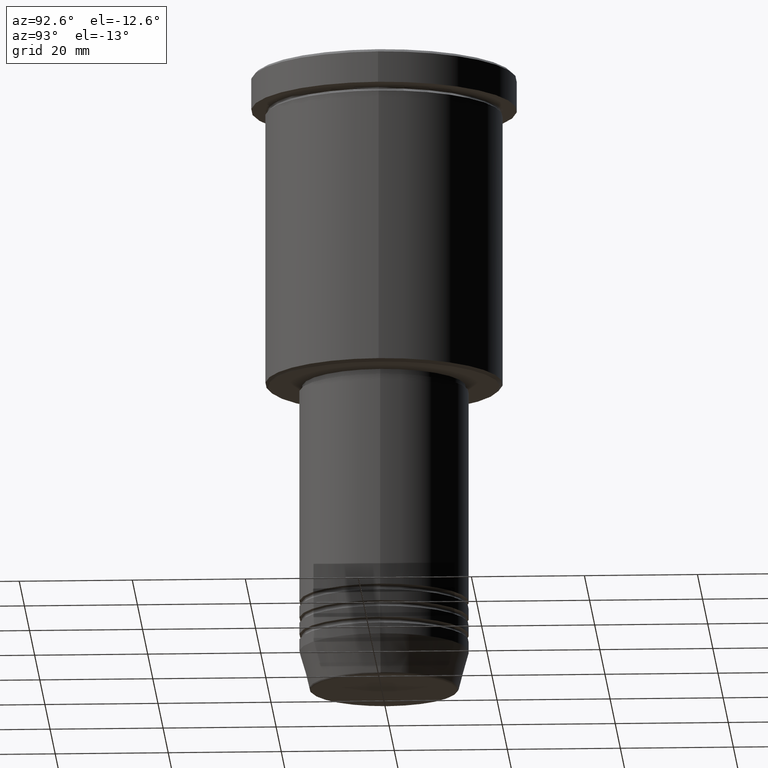
[diagram: clean part render]
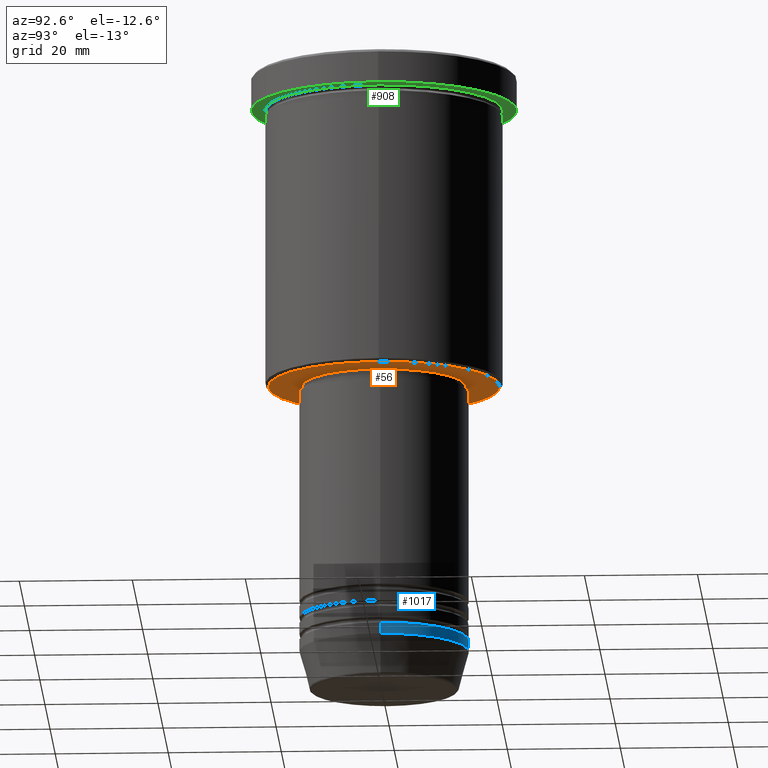
[diagram: same view with three faces highlighted in distinct colors, each labeled with its STEP entity id]
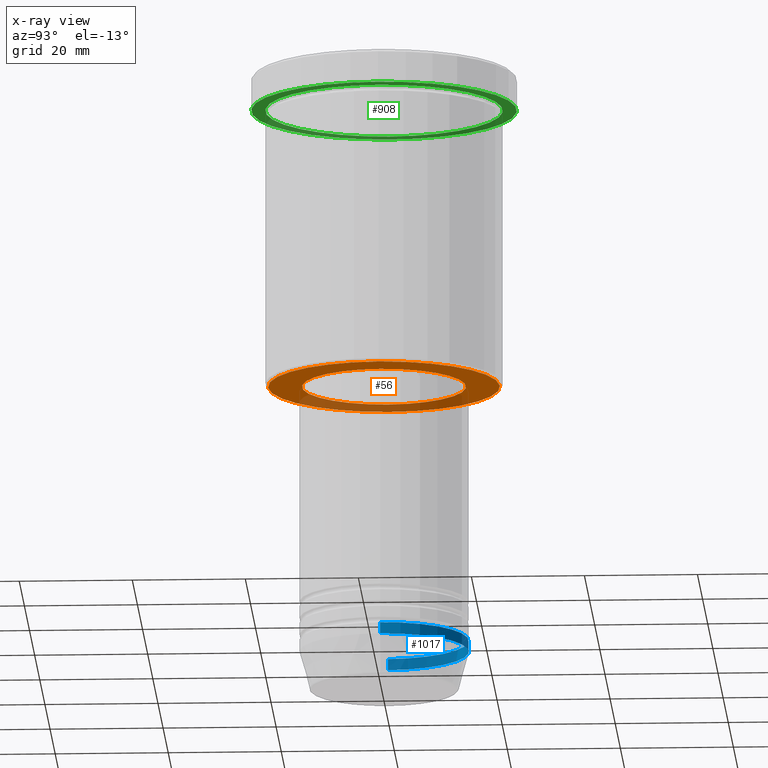
[diagram: x-ray of the same camera — body ghosted, the three highlighted faces saturated]
A machine part, auxiliary view with three faces highlighted in distinct colors.
The next image is the same camera in x-ray (body ghosted, the three faces saturated) — at least one of them is partly hidden behind the body in this view.
Their STEP definitions:

[orange] entity #56 — the highlighted planar face has unit normal (0, 0, -1).
#13 = PLANE ( 'NONE',  #667 ) ;
#30 = ORIENTED_EDGE ( 'NONE', *, *, #347, .T. ) ;
#56 = ADVANCED_FACE ( 'NONE', ( #648, #566 ), #13, .T. ) ;
#67 = EDGE_LOOP ( 'NONE', ( #420, #310 ) ) ;
#69 = AXIS2_PLACEMENT_3D ( 'NONE', #801, #1168, #897 ) ;
#80 = EDGE_CURVE ( 'NONE', #602, #323, #220, .T. ) ;
#100 = DIRECTION ( 'NONE',  ( 0.000000000000000000, 0.000000000000000000, -1.000000000000000000 ) ) ;
#134 = EDGE_CURVE ( 'NONE', #323, #602, #680, .T. ) ;
#164 = EDGE_CURVE ( 'NONE', #619, #401, #890, .T. ) ;
#220 = CIRCLE ( 'NONE', #240, 20.50000000000003197 ) ;
#240 = AXIS2_PLACEMENT_3D ( 'NONE', #432, #788, #1079 ) ;
#270 = CARTESIAN_POINT ( 'NONE',  ( -14.49999999999999822, 1.775737858763662015E-15, -55.99999999999999289 ) ) ;
#282 = CARTESIAN_POINT ( 'NONE',  ( 20.50000000000003197, 0.000000000000000000, -55.99999999999999289 ) ) ;
#310 = ORIENTED_EDGE ( 'NONE', *, *, #80, .T. ) ;
#323 = VERTEX_POINT ( 'NONE', #282 ) ;
#334 = AXIS2_PLACEMENT_3D ( 'NONE', #697, #443, #993 ) ;
#347 = EDGE_CURVE ( 'NONE', #401, #619, #818, .T. ) ;
#360 = ORIENTED_EDGE ( 'NONE', *, *, #164, .T. ) ;
#401 = VERTEX_POINT ( 'NONE', #663 ) ;
#419 = CARTESIAN_POINT ( 'NONE',  ( -20.50000000000003197, 2.541142108230759846E-15, -55.99999999999999289 ) ) ;
#420 = ORIENTED_EDGE ( 'NONE', *, *, #134, .T. ) ;
#432 = CARTESIAN_POINT ( 'NONE',  ( 0.000000000000000000, 0.000000000000000000, -55.99999999999999289 ) ) ;
#443 = DIRECTION ( 'NONE',  ( -0.000000000000000000, -0.000000000000000000, 1.000000000000000000 ) ) ;
#532 = DIRECTION ( 'NONE',  ( 0.000000000000000000, 0.000000000000000000, -1.000000000000000000 ) ) ;
#535 = AXIS2_PLACEMENT_3D ( 'NONE', #1151, #532, #887 ) ;
#566 = FACE_BOUND ( 'NONE', #741, .T. ) ;
#602 = VERTEX_POINT ( 'NONE', #419 ) ;
#619 = VERTEX_POINT ( 'NONE', #270 ) ;
#648 = FACE_OUTER_BOUND ( 'NONE', #67, .T. ) ;
#663 = CARTESIAN_POINT ( 'NONE',  ( 14.49999999999999822, 0.000000000000000000, -55.99999999999999289 ) ) ;
#667 = AXIS2_PLACEMENT_3D ( 'NONE', #739, #100, #1105 ) ;
#680 = CIRCLE ( 'NONE', #535, 20.50000000000003197 ) ;
#697 = CARTESIAN_POINT ( 'NONE',  ( 0.000000000000000000, 0.000000000000000000, -55.99999999999999289 ) ) ;
#739 = CARTESIAN_POINT ( 'NONE',  ( 0.000000000000000000, 21.00000000000000000, -55.99999999999999289 ) ) ;
#741 = EDGE_LOOP ( 'NONE', ( #30, #360 ) ) ;
#788 = DIRECTION ( 'NONE',  ( 0.000000000000000000, 0.000000000000000000, -1.000000000000000000 ) ) ;
#801 = CARTESIAN_POINT ( 'NONE',  ( 0.000000000000000000, 0.000000000000000000, -55.99999999999999289 ) ) ;
#818 = CIRCLE ( 'NONE', #334, 14.49999999999999822 ) ;
#887 = DIRECTION ( 'NONE',  ( -1.000000000000000000, 0.000000000000000000, 0.000000000000000000 ) ) ;
#890 = CIRCLE ( 'NONE', #69, 14.49999999999999822 ) ;
#897 = DIRECTION ( 'NONE',  ( 1.000000000000000000, 0.000000000000000000, 0.000000000000000000 ) ) ;
#993 = DIRECTION ( 'NONE',  ( 1.000000000000000000, 0.000000000000000000, 0.000000000000000000 ) ) ;
#1079 = DIRECTION ( 'NONE',  ( -1.000000000000000000, 0.000000000000000000, 0.000000000000000000 ) ) ;
#1105 = DIRECTION ( 'NONE',  ( -1.000000000000000000, 0.000000000000000000, -0.000000000000000000 ) ) ;
#1151 = CARTESIAN_POINT ( 'NONE',  ( 0.000000000000000000, 0.000000000000000000, -55.99999999999999289 ) ) ;
#1168 = DIRECTION ( 'NONE',  ( -0.000000000000000000, -0.000000000000000000, 1.000000000000000000 ) ) ;

[blue] entity #1017 — the highlighted cylindrical surface (partial cylindrical patch) has radius 15 mm, axis along (-0, -0, 1).
#193 = VERTEX_POINT ( 'NONE', #867 ) ;
#218 = CARTESIAN_POINT ( 'NONE',  ( -15.00000000000000000, 1.836970198721029589E-15, -104.0000000000000142 ) ) ;
#298 = DIRECTION ( 'NONE',  ( -0.000000000000000000, -0.000000000000000000, 1.000000000000000000 ) ) ;
#319 = DIRECTION ( 'NONE',  ( -0.000000000000000000, -0.000000000000000000, 1.000000000000000000 ) ) ;
#336 = DIRECTION ( 'NONE',  ( 1.000000000000000000, 0.000000000000000000, 0.000000000000000000 ) ) ;
#345 = CARTESIAN_POINT ( 'NONE',  ( 15.00000000000000000, 0.000000000000000000, 0.000000000000000000 ) ) ;
#356 = CIRCLE ( 'NONE', #1104, 15.00000000000000000 ) ;
#375 = CIRCLE ( 'NONE', #1164, 15.00000000000000000 ) ;
#391 = VERTEX_POINT ( 'NONE', #475 ) ;
#455 = CYLINDRICAL_SURFACE ( 'NONE', #580, 15.00000000000000000 ) ;
#475 = CARTESIAN_POINT ( 'NONE',  ( -15.00000000000000000, 1.836970198721029589E-15, -102.0000000000000142 ) ) ;
#504 = ORIENTED_EDGE ( 'NONE', *, *, #547, .T. ) ;
#531 = ORIENTED_EDGE ( 'NONE', *, *, #996, .F. ) ;
#547 = EDGE_CURVE ( 'NONE', #193, #830, #375, .T. ) ;
#580 = AXIS2_PLACEMENT_3D ( 'NONE', #987, #635, #732 ) ;
#594 = CARTESIAN_POINT ( 'NONE',  ( 0.000000000000000000, 0.000000000000000000, -104.0000000000000142 ) ) ;
#622 = ORIENTED_EDGE ( 'NONE', *, *, #1182, .T. ) ;
#635 = DIRECTION ( 'NONE',  ( -0.000000000000000000, -0.000000000000000000, 1.000000000000000000 ) ) ;
#664 = DIRECTION ( 'NONE',  ( 1.000000000000000000, 0.000000000000000000, 0.000000000000000000 ) ) ;
#710 = FACE_OUTER_BOUND ( 'NONE', #1009, .T. ) ;
#732 = DIRECTION ( 'NONE',  ( 1.000000000000000000, 0.000000000000000000, 0.000000000000000000 ) ) ;
#748 = DIRECTION ( 'NONE',  ( -0.000000000000000000, -0.000000000000000000, 1.000000000000000000 ) ) ;
#825 = LINE ( 'NONE', #345, #1179 ) ;
#830 = VERTEX_POINT ( 'NONE', #218 ) ;
#833 = CARTESIAN_POINT ( 'NONE',  ( -15.00000000000000000, 1.836970198721029589E-15, 0.000000000000000000 ) ) ;
#846 = LINE ( 'NONE', #833, #929 ) ;
#851 = EDGE_CURVE ( 'NONE', #1142, #391, #356, .T. ) ;
#867 = CARTESIAN_POINT ( 'NONE',  ( 15.00000000000000000, 0.000000000000000000, -104.0000000000000142 ) ) ;
#907 = ORIENTED_EDGE ( 'NONE', *, *, #851, .F. ) ;
#929 = VECTOR ( 'NONE', #298, 1000.000000000000000 ) ;
#987 = CARTESIAN_POINT ( 'NONE',  ( 0.000000000000000000, 0.000000000000000000, 0.000000000000000000 ) ) ;
#996 = EDGE_CURVE ( 'NONE', #193, #1142, #825, .T. ) ;
#1009 = EDGE_LOOP ( 'NONE', ( #504, #622, #907, #531 ) ) ;
#1017 = ADVANCED_FACE ( 'NONE', ( #710 ), #455, .T. ) ;
#1104 = AXIS2_PLACEMENT_3D ( 'NONE', #1117, #748, #664 ) ;
#1117 = CARTESIAN_POINT ( 'NONE',  ( 0.000000000000000000, 0.000000000000000000, -102.0000000000000142 ) ) ;
#1127 = CARTESIAN_POINT ( 'NONE',  ( 15.00000000000000000, 0.000000000000000000, -102.0000000000000142 ) ) ;
#1142 = VERTEX_POINT ( 'NONE', #1127 ) ;
#1164 = AXIS2_PLACEMENT_3D ( 'NONE', #594, #319, #336 ) ;
#1174 = DIRECTION ( 'NONE',  ( -0.000000000000000000, -0.000000000000000000, 1.000000000000000000 ) ) ;
#1179 = VECTOR ( 'NONE', #1174, 1000.000000000000000 ) ;
#1182 = EDGE_CURVE ( 'NONE', #830, #391, #846, .T. ) ;

[green] entity #908 — the highlighted planar face has unit normal (0, 0, -1).
#34 = CARTESIAN_POINT ( 'NONE',  ( -21.00000000000000000, 0.000000000000000000, -5.999999999999994671 ) ) ;
#45 = VERTEX_POINT ( 'NONE', #34 ) ;
#78 = DIRECTION ( 'NONE',  ( -1.000000000000000000, 0.000000000000000000, 0.000000000000000000 ) ) ;
#129 = AXIS2_PLACEMENT_3D ( 'NONE', #384, #1116, #208 ) ;
#151 = ORIENTED_EDGE ( 'NONE', *, *, #1148, .F. ) ;
#196 = EDGE_LOOP ( 'NONE', ( #1091, #339 ) ) ;
#208 = DIRECTION ( 'NONE',  ( -1.000000000000000000, 0.000000000000000000, 0.000000000000000000 ) ) ;
#210 = VERTEX_POINT ( 'NONE', #992 ) ;
#233 = DIRECTION ( 'NONE',  ( 0.000000000000000000, 0.000000000000000000, -1.000000000000000000 ) ) ;
#264 = ORIENTED_EDGE ( 'NONE', *, *, #592, .F. ) ;
#274 = DIRECTION ( 'NONE',  ( -0.000000000000000000, -0.000000000000000000, 1.000000000000000000 ) ) ;
#287 = DIRECTION ( 'NONE',  ( 1.000000000000000000, 0.000000000000000000, 0.000000000000000000 ) ) ;
#303 = CARTESIAN_POINT ( 'NONE',  ( 0.000000000000000000, 0.000000000000000000, -5.999999999999994671 ) ) ;
#324 = DIRECTION ( 'NONE',  ( -1.000000000000000000, 0.000000000000000000, -0.000000000000000000 ) ) ;
#329 = VERTEX_POINT ( 'NONE', #379 ) ;
#339 = ORIENTED_EDGE ( 'NONE', *, *, #1070, .T. ) ;
#346 = VERTEX_POINT ( 'NONE', #523 ) ;
#372 = AXIS2_PLACEMENT_3D ( 'NONE', #303, #936, #287 ) ;
#379 = CARTESIAN_POINT ( 'NONE',  ( 23.50000000000000000, 0.000000000000000000, -5.999999999999994671 ) ) ;
#384 = CARTESIAN_POINT ( 'NONE',  ( 0.000000000000000000, 0.000000000000000000, -5.999999999999994671 ) ) ;
#424 = CARTESIAN_POINT ( 'NONE',  ( 0.000000000000000000, 0.000000000000000000, -5.999999999999994671 ) ) ;
#448 = FACE_BOUND ( 'NONE', #196, .T. ) ;
#459 = CIRCLE ( 'NONE', #129, 21.00000000000000000 ) ;
#517 = CIRCLE ( 'NONE', #684, 23.50000000000000000 ) ;
#522 = EDGE_CURVE ( 'NONE', #45, #346, #459, .T. ) ;
#523 = CARTESIAN_POINT ( 'NONE',  ( 21.00000000000000000, 2.571758278209441661E-15, -5.999999999999994671 ) ) ;
#529 = CARTESIAN_POINT ( 'NONE',  ( 0.000000000000000000, 23.50000000000000000, -5.999999999999994671 ) ) ;
#592 = EDGE_CURVE ( 'NONE', #210, #329, #517, .T. ) ;
#684 = AXIS2_PLACEMENT_3D ( 'NONE', #424, #1137, #1130 ) ;
#718 = FACE_OUTER_BOUND ( 'NONE', #734, .T. ) ;
#734 = EDGE_LOOP ( 'NONE', ( #151, #264 ) ) ;
#899 = CARTESIAN_POINT ( 'NONE',  ( 0.000000000000000000, 0.000000000000000000, -5.999999999999994671 ) ) ;
#908 = ADVANCED_FACE ( 'NONE', ( #448, #718 ), #1036, .T. ) ;
#936 = DIRECTION ( 'NONE',  ( -0.000000000000000000, -0.000000000000000000, 1.000000000000000000 ) ) ;
#951 = AXIS2_PLACEMENT_3D ( 'NONE', #899, #274, #78 ) ;
#982 = AXIS2_PLACEMENT_3D ( 'NONE', #529, #233, #324 ) ;
#992 = CARTESIAN_POINT ( 'NONE',  ( -23.50000000000000000, 2.877919977996280320E-15, -5.999999999999994671 ) ) ;
#1027 = CIRCLE ( 'NONE', #951, 21.00000000000000000 ) ;
#1036 = PLANE ( 'NONE',  #982 ) ;
#1070 = EDGE_CURVE ( 'NONE', #346, #45, #1027, .T. ) ;
#1082 = CIRCLE ( 'NONE', #372, 23.50000000000000000 ) ;
#1091 = ORIENTED_EDGE ( 'NONE', *, *, #522, .T. ) ;
#1116 = DIRECTION ( 'NONE',  ( -0.000000000000000000, -0.000000000000000000, 1.000000000000000000 ) ) ;
#1130 = DIRECTION ( 'NONE',  ( 1.000000000000000000, 0.000000000000000000, 0.000000000000000000 ) ) ;
#1137 = DIRECTION ( 'NONE',  ( -0.000000000000000000, -0.000000000000000000, 1.000000000000000000 ) ) ;
#1148 = EDGE_CURVE ( 'NONE', #329, #210, #1082, .T. ) ;